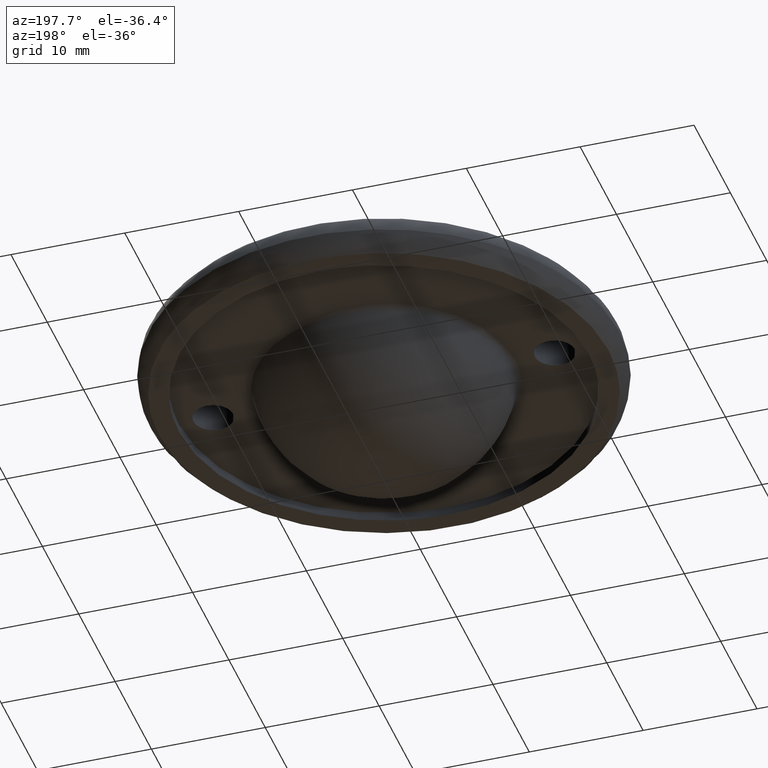
[diagram: clean part render]
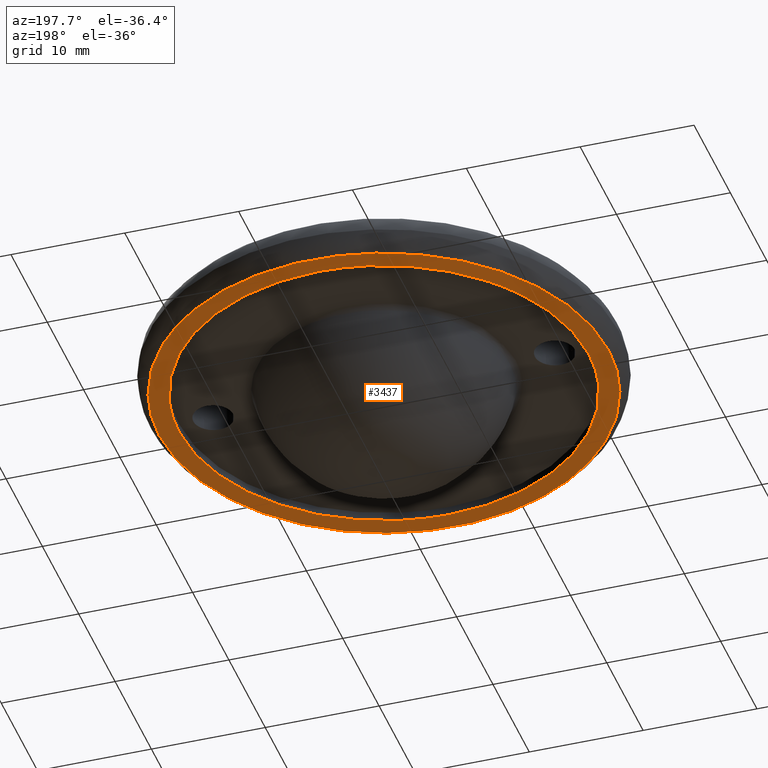
[diagram: same view with one face highlighted and labeled with its STEP entity id]
A machine part, auxiliary view. The second image highlights one B-rep face of the part: STEP entity #3437.
In plain terms, the highlighted face is a freeform B-spline surface patch.
Its self-contained STEP definition (entity closure, byte-faithful):
#3104=CARTESIAN_POINT('',(-13.056738547303469,12.390382227073140,-1.908196E-017));
#3105=VERTEX_POINT('',#3104);
#3111=CARTESIAN_POINT('',(0.000000753742928,17.999999999999989,0.0));
#3112=VERTEX_POINT('',#3111);
#3113=CARTESIAN_POINT('',(-13.056738547303469,12.390382227073140,-1.908196E-017));
#3114=CARTESIAN_POINT('',(-12.349745671198740,13.135507231548219,-1.804871E-017));
#3115=CARTESIAN_POINT('',(-10.950496502721791,14.377474189643760,-1.600376E-017));
#3116=CARTESIAN_POINT('',(-8.800257034572921,15.757631696194560,-1.286126E-017));
#3117=CARTESIAN_POINT('',(-6.976360790605290,16.624802991796589,-1.019570E-017));
#3118=CARTESIAN_POINT('',(-5.185144265980688,17.269637808231028,-7.577904E-018));
#3119=CARTESIAN_POINT('',(-2.929256304298866,17.831590503955681,-4.281005E-018));
#3120=CARTESIAN_POINT('',(-1.103244650745719,18.000101532432140,-1.612354E-018));
#3121=CARTESIAN_POINT('',(0.000000753742928,17.999999999999989,0.0));
#3122=B_SPLINE_CURVE_WITH_KNOTS('',3,(#3113,#3114,#3115,#3116,#3117,#3118,#3119,#3120,#3121),.UNSPECIFIED.,.F.,.U.,(4,1,1,1,1,1,4),(4.674877E-009,3.081464110556427,5.592294247733523,7.646590626091077,9.130268535967494,11.298709392312700,14.608430994228010),.UNSPECIFIED.);
#3123=EDGE_CURVE('',#3105,#3112,#3122,.T.);
#3125=CARTESIAN_POINT('',(18.0,0.0,0.0));
#3126=VERTEX_POINT('',#3125);
#3127=CARTESIAN_POINT('',(0.000000753742928,17.999999999999989,0.0));
#3128=CARTESIAN_POINT('',(0.920391097685477,18.000055462751931,0.0));
#3129=CARTESIAN_POINT('',(2.540258942669548,17.875478063770480,0.0));
#3130=CARTESIAN_POINT('',(4.847771662503243,17.379563915264988,0.0));
#3131=CARTESIAN_POINT('',(7.010259235868298,16.635647975594221,0.0));
#3132=CARTESIAN_POINT('',(8.925258245289061,15.679063421167429,0.0));
#3133=CARTESIAN_POINT('',(10.590094664327809,14.588637742938280,0.0));
#3134=CARTESIAN_POINT('',(12.144126736483271,13.344924950491510,0.0));
#3135=CARTESIAN_POINT('',(13.488629487665470,11.975434373448330,0.0));
#3136=CARTESIAN_POINT('',(14.763014558893330,10.352722387971211,0.0));
#3137=CARTESIAN_POINT('',(15.690485028247091,8.888096583544009,0.0));
#3138=CARTESIAN_POINT('',(16.639711930162530,6.973169629769020,0.0));
#3139=CARTESIAN_POINT('',(17.373487796991871,4.922484218864512,0.0));
#3140=CARTESIAN_POINT('',(17.885475629158471,2.466623506506769,0.0));
#3141=CARTESIAN_POINT('',(18.000042355267489,0.846755272831245,0.0));
#3142=CARTESIAN_POINT('',(18.0,0.0,0.0));
#3143=B_SPLINE_CURVE_WITH_KNOTS('',3,(#3127,#3128,#3129,#3130,#3131,#3132,#3133,#3134,#3135,#3136,#3137,#3138,#3139,#3140,#3141,#3142),.UNSPECIFIED.,.F.,.U.,(4,1,1,1,1,1,1,1,1,1,1,1,1,4),(0.000000017574354,2.761167755137986,4.859657983059634,7.068594562351436,9.608871364409573,11.265584503065410,13.032738575457619,15.572986595486810,17.008796190026189,19.217740876496681,20.763994810956550,23.414725691874899,25.734115091569279,28.274377811708369),.UNSPECIFIED.);
#3144=EDGE_CURVE('',#3112,#3126,#3143,.T.);
#3146=CARTESIAN_POINT('',(13.056738547303571,-12.390382227073241,-1.908196E-017));
#3147=VERTEX_POINT('',#3146);
#3148=CARTESIAN_POINT('',(18.0,0.0,0.0));
#3149=CARTESIAN_POINT('',(18.000031905817028,-0.782944992406055,-1.205784E-018));
#3150=CARTESIAN_POINT('',(17.913942284076651,-2.099705529486153,-3.233677E-018));
#3151=CARTESIAN_POINT('',(17.566661181007611,-4.064170090226913,-6.259074E-018));
#3152=CARTESIAN_POINT('',(17.081312117849969,-5.779051528229147,-8.900098E-018));
#3153=CARTESIAN_POINT('',(16.341977564503232,-7.632205714598928,-1.175407E-017));
#3154=CARTESIAN_POINT('',(15.135266540747971,-9.898275322988594,-1.524396E-017));
#3155=CARTESIAN_POINT('',(13.914309897207771,-11.486989119733970,-1.769068E-017));
#3156=CARTESIAN_POINT('',(13.056738547303571,-12.390382227073241,-1.908196E-017));
#3157=B_SPLINE_CURVE_WITH_KNOTS('',3,(#3148,#3149,#3150,#3151,#3152,#3153,#3154,#3155,#3156),.UNSPECIFIED.,.F.,.U.,(4,1,1,1,1,1,4),(5.293131E-009,2.348833440438625,3.950313472301454,5.978860765034141,7.687087236352324,9.929164265750851,13.665947996091200),.UNSPECIFIED.);
#3158=EDGE_CURVE('',#3126,#3147,#3157,.T.);
#3192=CARTESIAN_POINT('',(-0.000000753742381,-17.999999999999989,0.0));
#3193=VERTEX_POINT('',#3192);
#3194=CARTESIAN_POINT('',(13.056738547303571,-12.390382227073241,-1.908196E-017));
#3195=CARTESIAN_POINT('',(12.611567923548570,-12.859504045084231,-1.843136E-017));
#3196=CARTESIAN_POINT('',(11.532230562799681,-13.880637400877260,-1.685394E-017));
#3197=CARTESIAN_POINT('',(9.903901053839473,-15.077996829469010,-1.447420E-017));
#3198=CARTESIAN_POINT('',(8.185370719239687,-16.061732826300890,-1.196263E-017));
#3199=CARTESIAN_POINT('',(6.311263207081975,-16.909546234463178,-9.223687E-018));
#3200=CARTESIAN_POINT('',(4.305348930675180,-17.525670939385918,-6.292115E-018));
#3201=CARTESIAN_POINT('',(2.092340060840059,-17.915438779276919,-3.057881E-018));
#3202=CARTESIAN_POINT('',(0.760853264271841,-18.000025001935480,-1.111961E-018));
#3203=CARTESIAN_POINT('',(-0.000000753742381,-17.999999999999989,0.0));
#3204=B_SPLINE_CURVE_WITH_KNOTS('',3,(#3194,#3195,#3196,#3197,#3198,#3199,#3200,#3201,#3202,#3203),.UNSPECIFIED.,.F.,.U.,(4,1,1,1,1,1,1,4),(4.676400E-009,1.940178041945620,4.451006579528908,6.048810111487073,7.874847706601326,10.613937102401200,12.325868176181960,14.608430994227520),.UNSPECIFIED.);
#3205=EDGE_CURVE('',#3147,#3193,#3204,.T.);
#3207=CARTESIAN_POINT('',(-18.0,0.0,0.0));
#3208=VERTEX_POINT('',#3207);
#3209=CARTESIAN_POINT('',(-0.000000753742381,-17.999999999999989,0.0));
#3210=CARTESIAN_POINT('',(-0.920391216325065,-18.000055611480949,0.0));
#3211=CARTESIAN_POINT('',(-2.540258583158592,-17.875476950559769,0.0));
#3212=CARTESIAN_POINT('',(-4.847773370864876,-17.379568437586219,0.0));
#3213=CARTESIAN_POINT('',(-6.800976981976881,-16.707620723326212,0.0));
#3214=CARTESIAN_POINT('',(-8.731086283042775,-15.787489597487831,0.0));
#3215=CARTESIAN_POINT('',(-10.323751860244251,-14.785776602042290,0.0));
#3216=CARTESIAN_POINT('',(-11.888499045005970,-13.556887443674070,0.0));
#3217=CARTESIAN_POINT('',(-13.269476011184160,-12.225851887155390,0.0));
#3218=CARTESIAN_POINT('',(-14.504767332513540,-10.711168964579841,0.0));
#3219=CARTESIAN_POINT('',(-15.498682611071290,-9.203713414398798,0.0));
#3220=CARTESIAN_POINT('',(-16.367476208898239,-7.578338732877084,0.0));
#3221=CARTESIAN_POINT('',(-17.189280268175100,-5.523480205883875,0.0));
#3222=CARTESIAN_POINT('',(-17.835079444218469,-2.945214036473766,0.0));
#3223=CARTESIAN_POINT('',(-18.000094349171299,-1.030840317804400,0.0));
#3224=CARTESIAN_POINT('',(-18.0,0.0,0.0));
#3225=B_SPLINE_CURVE_WITH_KNOTS('',3,(#3209,#3210,#3211,#3212,#3213,#3214,#3215,#3216,#3217,#3218,#3219,#3220,#3221,#3222,#3223,#3224),.UNSPECIFIED.,.F.,.U.,(4,1,1,1,1,1,1,1,1,1,1,1,1,4),(0.000000017572567,2.761167755136881,4.859657983058821,7.068594562350988,8.946190669853937,11.265584503065760,12.701393555582801,14.910313560769429,17.008796190026661,18.555059421686561,20.322206379819871,22.531144910582380,25.181872953430972,28.274377811708689),.UNSPECIFIED.);
#3226=EDGE_CURVE('',#3193,#3208,#3225,.T.);
#3228=CARTESIAN_POINT('',(-18.0,0.0,0.0));
#3229=CARTESIAN_POINT('',(-18.000027344563250,0.782944191986255,-1.205783E-018));
#3230=CARTESIAN_POINT('',(-17.893024723617089,2.420003262095085,-3.726955E-018));
#3231=CARTESIAN_POINT('',(-17.357120616141181,5.041690802558860,-7.764517E-018));
#3232=CARTESIAN_POINT('',(-16.529160162086161,7.249044310950069,-1.116398E-017));
#3233=CARTESIAN_POINT('',(-15.535857102327180,9.141046144238141,-1.407778E-017));
#3234=CARTESIAN_POINT('',(-14.508098907583580,10.725829986492800,-1.651844E-017));
#3235=CARTESIAN_POINT('',(-13.595699919280840,11.822472301522531,-1.820734E-017));
#3236=CARTESIAN_POINT('',(-13.056738547303469,12.390382227073140,-1.908196E-017));
#3237=B_SPLINE_CURVE_WITH_KNOTS('',3,(#3228,#3229,#3230,#3231,#3232,#3233,#3234,#3235,#3236),.UNSPECIFIED.,.F.,.U.,(4,1,1,1,1,1,4),(5.293133E-009,2.348833440438430,4.911204649856833,8.007390411250736,9.395336377385123,11.317114560945591,13.665947996091161),.UNSPECIFIED.);
#3238=EDGE_CURVE('',#3208,#3105,#3237,.T.);
#3276=CARTESIAN_POINT('',(-15.529889784431431,-12.203272109028800,6.625880E-011));
#3277=VERTEX_POINT('',#3276);
#3288=CARTESIAN_POINT('',(19.750881673487498,0.0,0.0));
#3289=VERTEX_POINT('',#3288);
#3290=CARTESIAN_POINT('',(19.750881673487498,0.0,0.0));
#3291=CARTESIAN_POINT('',(19.750936793521529,-0.954978002047171,5.539699E-013));
#3292=CARTESIAN_POINT('',(19.630577286088648,-2.610246623773080,1.716216E-012));
#3293=CARTESIAN_POINT('',(19.159733525202430,-4.954241244258401,3.865939E-012));
#3294=CARTESIAN_POINT('',(18.571941753130130,-6.808071688153651,5.927440E-012));
#3295=CARTESIAN_POINT('',(17.638719074056411,-9.007525708695779,8.768880E-012));
#3296=CARTESIAN_POINT('',(16.481586745874701,-10.995969616535159,1.186347E-011));
#3297=CARTESIAN_POINT('',(15.031044906705580,-12.855514915756309,1.537544E-011));
#3298=CARTESIAN_POINT('',(13.634690345780740,-14.341648089676710,1.857986E-011));
#3299=CARTESIAN_POINT('',(11.748270697996150,-15.963635487377370,2.268512E-011));
#3300=CARTESIAN_POINT('',(9.563328624858913,-17.349058259812669,2.715386E-011));
#3301=CARTESIAN_POINT('',(7.276746806405110,-18.403533010720292,3.160108E-011));
#3302=CARTESIAN_POINT('',(5.039464782145280,-19.153275482373029,3.578880E-011));
#3303=CARTESIAN_POINT('',(2.253359932169277,-19.704252439123980,4.078178E-011));
#3304=CARTESIAN_POINT('',(-0.492629147745731,-19.808818175934061,4.544846E-011));
#3305=CARTESIAN_POINT('',(-3.220152928671050,-19.535826459119111,4.986513E-011));
#3306=CARTESIAN_POINT('',(-5.399775833190653,-19.047037849499169,5.323756E-011));
#3307=CARTESIAN_POINT('',(-7.774148312995086,-18.209605244541251,5.673438E-011));
#3308=CARTESIAN_POINT('',(-9.833317727189053,-17.189550278923299,5.959653E-011));
#3309=CARTESIAN_POINT('',(-11.692852003873289,-15.956068382125300,6.200000E-011));
#3310=CARTESIAN_POINT('',(-13.596936898526071,-14.408887582847569,6.429620E-011));
#3311=CARTESIAN_POINT('',(-14.802271376638631,-13.129447064382880,6.557567E-011));
#3312=CARTESIAN_POINT('',(-15.529889784431431,-12.203272109028800,6.625880E-011));
#3313=B_SPLINE_CURVE_WITH_KNOTS('',3,(#3290,#3291,#3292,#3293,#3294,#3295,#3296,#3297,#3298,#3299,#3300,#3301,#3302,#3303,#3304,#3305,#3306,#3307,#3308,#3309,#3310,#3311,#3312),.UNSPECIFIED.,.F.,.U.,(4,1,1,1,1,1,1,1,1,1,1,1,1,1,1,1,1,1,1,1,4),(0.000000045830298,2.864926868720758,4.965861354943911,7.162316737301971,8.690283613504043,12.128212147157210,14.038167167056759,15.757136970257500,18.240083668516249,21.486992543467800,23.492471963421899,25.784358042736649,28.553799797762739,31.991724654740761,33.997191318764493,36.766625916317267,38.676583167878547,41.541520029405092,43.642482478533417,45.361445497776081,48.894836744465167),.UNSPECIFIED.);
#3314=EDGE_CURVE('',#3289,#3277,#3313,.T.);
#3316=CARTESIAN_POINT('',(15.529889784431431,12.203272109028809,6.625916E-011));
#3317=VERTEX_POINT('',#3316);
#3318=CARTESIAN_POINT('',(15.529889784431431,12.203272109028809,6.625916E-011));
#3319=CARTESIAN_POINT('',(16.037874650017439,11.556832816765841,6.227222E-011));
#3320=CARTESIAN_POINT('',(17.089900186307119,10.030870080380319,5.310752E-011));
#3321=CARTESIAN_POINT('',(18.225763125854261,7.755991461253699,4.017038E-011));
#3322=CARTESIAN_POINT('',(19.055493876006651,5.357015288821279,2.714493E-011));
#3323=CARTESIAN_POINT('',(19.606173927601489,2.877519808215130,1.419708E-011));
#3324=CARTESIAN_POINT('',(19.750943957556750,1.027692790853261,4.983626E-012));
#3325=CARTESIAN_POINT('',(19.750881673487498,0.0,0.0));
#3326=B_SPLINE_CURVE_WITH_KNOTS('',3,(#3318,#3319,#3320,#3321,#3322,#3323,#3324,#3325),.UNSPECIFIED.,.F.,.U.,(4,1,1,1,1,4),(4.318906E-009,2.466459342645553,5.549540604031048,7.604909890115591,10.071376781250040,13.154450489827120),.UNSPECIFIED.);
#3327=EDGE_CURVE('',#3317,#3289,#3326,.T.);
#3373=CARTESIAN_POINT('',(-19.750881673487491,0.0,9.540979E-015));
#3374=VERTEX_POINT('',#3373);
#3375=CARTESIAN_POINT('',(-19.750881673487491,0.0,9.540979E-015));
#3376=CARTESIAN_POINT('',(-19.750954447394658,1.050473493734535,6.188018E-013));
#3377=CARTESIAN_POINT('',(-19.590515400058170,3.055905088648504,2.051236E-012));
#3378=CARTESIAN_POINT('',(-18.988545771240091,5.602866949628863,4.538318E-012));
#3379=CARTESIAN_POINT('',(-18.134976903255179,7.937279731165467,7.324065E-012));
#3380=CARTESIAN_POINT('',(-16.957918673990392,10.274289626647430,1.065385E-011));
#3381=CARTESIAN_POINT('',(-15.382920074983121,12.485663800854960,1.457816E-011));
#3382=CARTESIAN_POINT('',(-13.811173313353009,14.158246733657020,1.818445E-011));
#3383=CARTESIAN_POINT('',(-12.117736378342331,15.657605625382830,2.189435E-011));
#3384=CARTESIAN_POINT('',(-10.306902454161669,16.912988519177858,2.565960E-011));
#3385=CARTESIAN_POINT('',(-8.156316167287921,18.027245852835890,2.991280E-011));
#3386=CARTESIAN_POINT('',(-6.078967587622143,18.842828714076660,3.386991E-011));
#3387=CARTESIAN_POINT('',(-4.009812841171620,19.378300947229189,3.765078E-011));
#3388=CARTESIAN_POINT('',(-1.772125716009399,19.709292900474871,4.159569E-011));
#3389=CARTESIAN_POINT('',(0.235944306209629,19.790637178986600,4.501067E-011));
#3390=CARTESIAN_POINT('',(2.683519681612499,19.617274669190980,4.901501E-011));
#3391=CARTESIAN_POINT('',(5.033858212661263,19.161366225420700,5.269236E-011));
#3392=CARTESIAN_POINT('',(7.329128598232003,18.382856302571010,5.609021E-011));
#3393=CARTESIAN_POINT('',(9.235960644598023,17.494977966045660,5.877315E-011));
#3394=CARTESIAN_POINT('',(11.100638323109649,16.390159202968800,6.125955E-011));
#3395=CARTESIAN_POINT('',(13.308482019794051,14.708519871595970,6.398687E-011));
#3396=CARTESIAN_POINT('',(14.762949933935751,13.179527847348220,6.553923E-011));
#3397=CARTESIAN_POINT('',(15.529889784431431,12.203272109028809,6.625916E-011));
#3398=B_SPLINE_CURVE_WITH_KNOTS('',3,(#3375,#3376,#3377,#3378,#3379,#3380,#3381,#3382,#3383,#3384,#3385,#3386,#3387,#3388,#3389,#3390,#3391,#3392,#3393,#3394,#3395,#3396,#3397),.UNSPECIFIED.,.F.,.U.,(4,1,1,1,1,1,1,1,1,1,1,1,1,1,1,1,1,1,1,1,4),(0.000000045811340,3.151411710616323,6.016356710387967,7.830806835167735,10.600245438946001,13.847176205220260,15.948127403477340,17.476086554342618,20.627534219553461,22.537468685731660,24.733888183169611,27.312347129177390,28.935799326165078,31.514247939092161,33.328701507983112,36.289136075538202,38.676583167876501,40.586541947160640,42.592003911941198,45.170427600272482,48.894836744465202),.UNSPECIFIED.);
#3399=EDGE_CURVE('',#3374,#3317,#3398,.T.);
#3401=CARTESIAN_POINT('',(-15.529889784431431,-12.203272109028800,6.625880E-011));
#3402=CARTESIAN_POINT('',(-16.376706743127510,-11.125980197696540,5.961511E-011));
#3403=CARTESIAN_POINT('',(-17.440825165861149,-9.435378938775630,4.963321E-011));
#3404=CARTESIAN_POINT('',(-18.454784727305519,-7.108986535178183,3.665268E-011));
#3405=CARTESIAN_POINT('',(-19.085262337792852,-5.222989320048013,2.645063E-011));
#3406=CARTESIAN_POINT('',(-19.606178652109360,-2.877521985427596,1.420450E-011));
#3407=CARTESIAN_POINT('',(-19.750942343285100,-1.027692031670600,4.992421E-012));
#3408=CARTESIAN_POINT('',(-19.750881673487491,0.0,9.540979E-015));
#3409=B_SPLINE_CURVE_WITH_KNOTS('',3,(#3401,#3402,#3403,#3404,#3405,#3406,#3407,#3408),.UNSPECIFIED.,.F.,.U.,(4,1,1,1,1,4),(4.320380E-009,4.110765908747208,5.960618399384187,7.604909890115506,10.071376781250050,13.154450489827109),.UNSPECIFIED.);
#3410=EDGE_CURVE('',#3277,#3374,#3409,.T.);
#3418=CARTESIAN_POINT('',(-21.723994676106809,-21.723868339027820,-4.440892E-016));
#3419=CARTESIAN_POINT('',(21.723995735626669,-21.723868339027820,-4.440892E-016));
#3420=CARTESIAN_POINT('',(-21.723994676106809,21.723890219690439,-4.440892E-016));
#3421=CARTESIAN_POINT('',(21.723995735626669,21.723890219690439,-4.440892E-016));
#3422=B_SPLINE_SURFACE_WITH_KNOTS('',1,1,((#3418,#3420),(#3419,#3421)),.UNSPECIFIED.,.F.,.F.,.U.,(2,2),(2,2),(0.0,43.447990411733493),(0.0,43.447758558718263),.UNSPECIFIED.);
#3423=ORIENTED_EDGE('',*,*,#3399,.T.);
#3424=ORIENTED_EDGE('',*,*,#3327,.T.);
#3425=ORIENTED_EDGE('',*,*,#3314,.T.);
#3426=ORIENTED_EDGE('',*,*,#3410,.T.);
#3427=EDGE_LOOP('',(#3423,#3424,#3425,#3426));
#3428=FACE_OUTER_BOUND('',#3427,.T.);
#3429=ORIENTED_EDGE('',*,*,#3144,.F.);
#3430=ORIENTED_EDGE('',*,*,#3123,.F.);
#3431=ORIENTED_EDGE('',*,*,#3238,.F.);
#3432=ORIENTED_EDGE('',*,*,#3226,.F.);
#3433=ORIENTED_EDGE('',*,*,#3205,.F.);
#3434=ORIENTED_EDGE('',*,*,#3158,.F.);
#3435=EDGE_LOOP('',(#3429,#3430,#3431,#3432,#3433,#3434));
#3436=FACE_BOUND('',#3435,.T.);
#3437=ADVANCED_FACE('',(#3428,#3436),#3422,.F.);